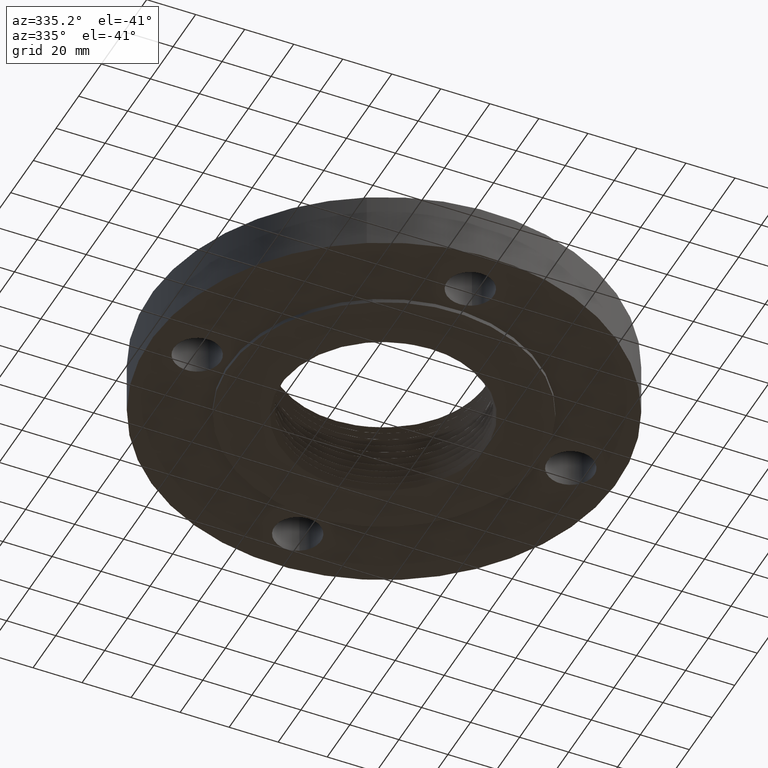
[diagram: clean part render]
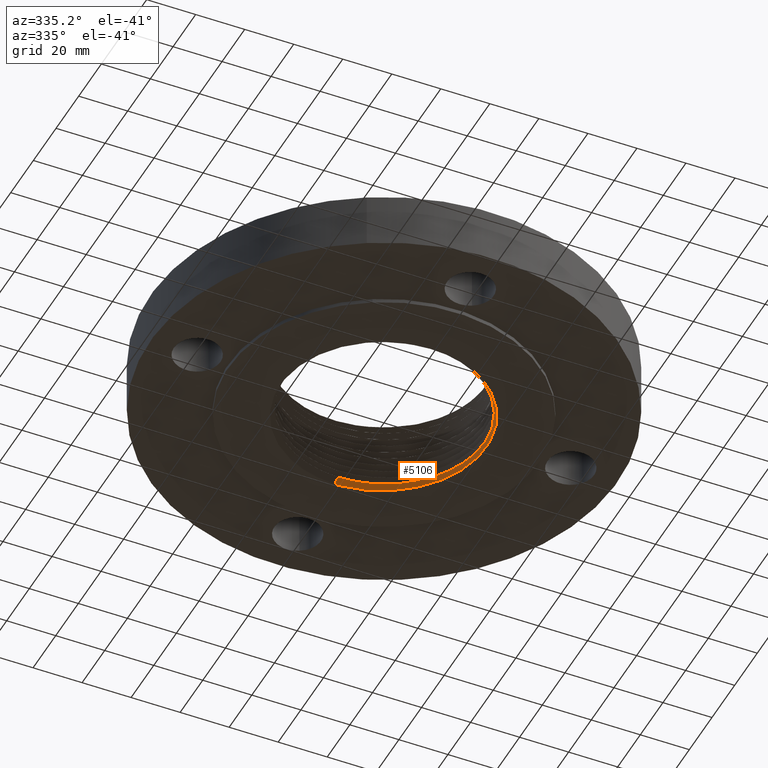
[diagram: same view with one face highlighted and labeled with its STEP entity id]
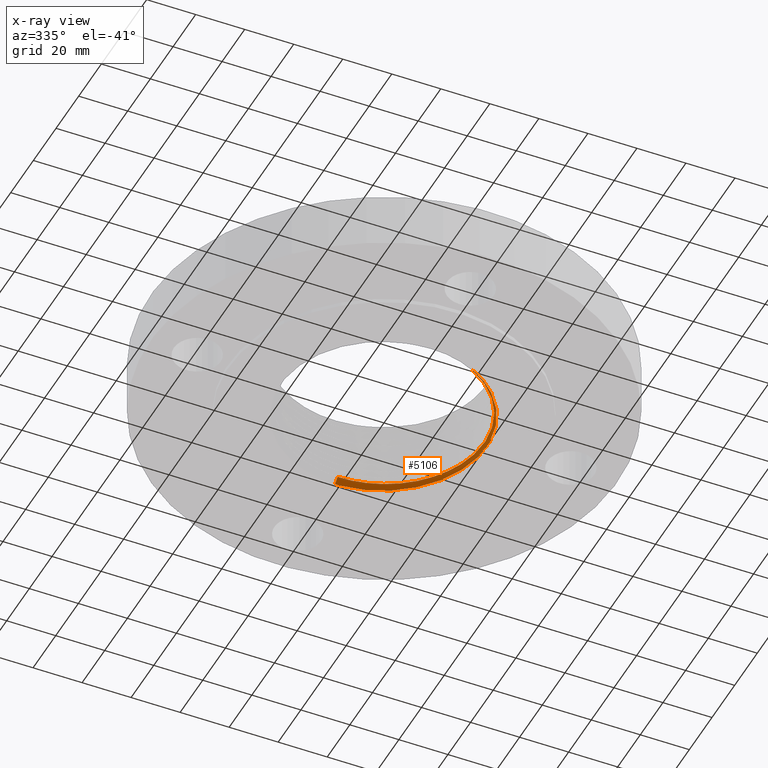
[diagram: x-ray of the same camera — body ghosted, the highlighted face saturated]
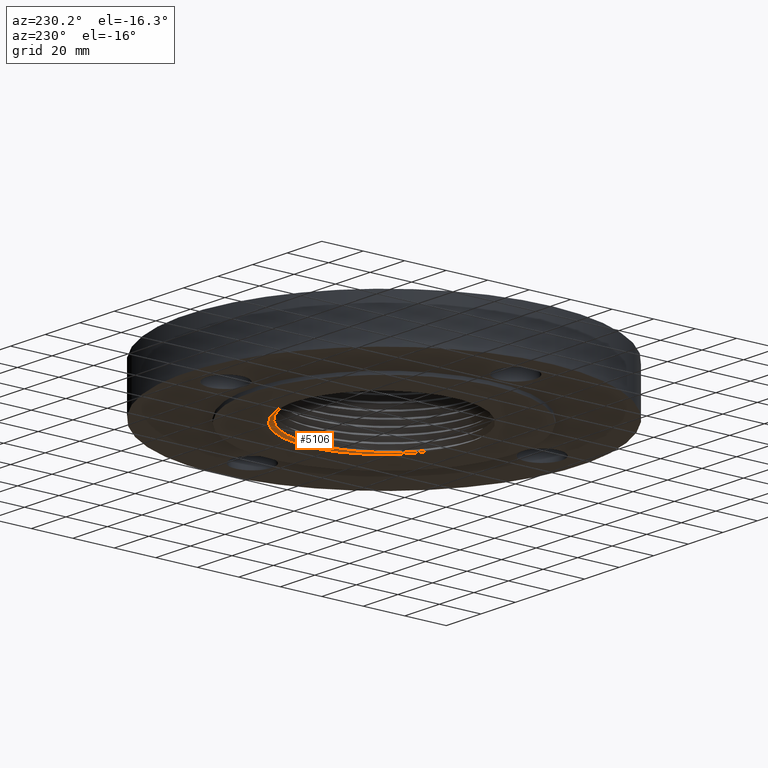
[diagram: same view with one face highlighted and labeled with its STEP entity id]
A machine part, auxiliary view. The second image highlights one B-rep face of the part: STEP entity #5106.
The next image is the same camera in x-ray: the body ghosted, the highlighted face saturated — about 0% of this face is hidden behind the body in this view.
A second angle (auxiliary view) of the same face is appended — the face is thin or edge-on in the first view.
In plain terms, the highlighted face is a freeform B-spline surface patch.
Its self-contained STEP definition (entity closure, byte-faithful):
#80=CARTESIAN_POINT('Vertex',(0.779727666988,-1.42731309088,-0.0625000000002)) ;
#84=CARTESIAN_POINT('Control Point',(0.0803885957613,1.7032381567,-0.0625000000003)) ;
#85=CARTESIAN_POINT('Control Point',(0.215600374124,1.69444358698,-0.0625000000003)) ;
#86=CARTESIAN_POINT('Control Point',(0.349811161119,1.67222714882,-0.0625000000003)) ;
#87=CARTESIAN_POINT('Control Point',(0.481211444396,1.63672790833,-0.0625000000003)) ;
#88=CARTESIAN_POINT('Control Point',(0.734996232187,1.54013031238,-0.0625000000003)) ;
#89=CARTESIAN_POINT('Control Point',(0.964201885189,1.39566433581,-0.0625000000003)) ;
#90=CARTESIAN_POINT('Control Point',(1.07112721349,1.3122409177,-0.0625000000003)) ;
#91=CARTESIAN_POINT('Control Point',(1.26671008398,1.12534408297,-0.0625000000003)) ;
#92=CARTESIAN_POINT('Control Point',(1.42114078721,0.903817690927,-0.0625000000003)) ;
#93=CARTESIAN_POINT('Control Point',(1.48693136268,0.785739012077,-0.0625000000003)) ;
#94=CARTESIAN_POINT('Control Point',(1.59380976479,0.538303399711,-0.0625000000003)) ;
#95=CARTESIAN_POINT('Control Point',(1.64928604649,0.274889194643,-0.0625000000003)) ;
#96=CARTESIAN_POINT('Control Point',(1.6636292106,0.140962999995,-0.0625000000003)) ;
#97=CARTESIAN_POINT('Control Point',(1.664676043,-0.0437822095799,-0.0625000000003)) ;
#98=CARTESIAN_POINT('Control Point',(1.64039500876,-0.22594661514,-0.0625000000003)) ;
#99=CARTESIAN_POINT('Control Point',(1.63190317246,-0.275317873615,-0.0625000000003)) ;
#100=CARTESIAN_POINT('Control Point',(1.59396788989,-0.454899241443,-0.0625000000003)) ;
#101=CARTESIAN_POINT('Control Point',(1.53141465201,-0.628058230536,-0.0625000000003)) ;
#102=CARTESIAN_POINT('Control Point',(1.4733608497,-0.748832554565,-0.0625000000003)) ;
#103=CARTESIAN_POINT('Control Point',(1.33377205932,-0.976748636683,-0.0625000000003)) ;
#104=CARTESIAN_POINT('Control Point',(1.15165507629,-1.17169169569,-0.0625000000003)) ;
#105=CARTESIAN_POINT('Control Point',(1.05107147082,-1.25948933282,-0.0625000000003)) ;
#106=CARTESIAN_POINT('Control Point',(0.933503050378,-1.34267183924,-0.0625000000003)) ;
#107=CARTESIAN_POINT('Control Point',(0.80831242576,-1.41207975131,-0.0625000000003)) ;
#108=CARTESIAN_POINT('Control Point',(0.798824790172,-1.41723741235,-0.0625000000003)) ;
#109=CARTESIAN_POINT('Control Point',(0.789296597434,-1.42231514833,-0.0625000000003)) ;
#110=CARTESIAN_POINT('Control Point',(0.779727666988,-1.42731309088,-0.0625000000003)) ;
#111=CARTESIAN_POINT('Vertex',(0.0803885957613,1.7032381567,-0.0625000000002)) ;
#4804=CARTESIAN_POINT('Vertex',(1.78145058611E-005,1.60843827521,0.00317851406243)) ;
#4808=CARTESIAN_POINT('Control Point',(0.770339045744,-1.41009616479,-0.049374072508)) ;
#4809=CARTESIAN_POINT('Control Point',(0.880698824853,-1.34986177459,-0.0478173888286)) ;
#4810=CARTESIAN_POINT('Control Point',(0.985169305199,-1.2788319718,-0.0462607327202)) ;
#4811=CARTESIAN_POINT('Control Point',(1.08433140626,-1.19653027357,-0.0446757339901)) ;
#4812=CARTESIAN_POINT('Control Point',(1.26588944816,-1.01093481439,-0.041477490097)) ;
#4813=CARTESIAN_POINT('Control Point',(1.40690068697,-0.792927137147,-0.0382795124876)) ;
#4814=CARTESIAN_POINT('Control Point',(1.46532231069,-0.678058421532,-0.036694780041)) ;
#4815=CARTESIAN_POINT('Control Point',(1.57415112368,-0.40148374484,-0.0330335004696)) ;
#4816=CARTESIAN_POINT('Control Point',(1.61753482187,-0.106236193541,-0.0293718216525)) ;
#4817=CARTESIAN_POINT('Control Point',(1.6197304579,0.0658369803995,-0.0272601978557)) ;
#4818=CARTESIAN_POINT('Control Point',(1.58895292536,0.320750464934,-0.0241027870675)) ;
#4819=CARTESIAN_POINT('Control Point',(1.50944587321,0.563002760072,-0.0209572270774)) ;
#4820=CARTESIAN_POINT('Control Point',(1.47766895988,0.6419712915,-0.0199088997105)) ;
#4821=CARTESIAN_POINT('Control Point',(1.40365141004,0.795509182757,-0.0178089783585)) ;
#4822=CARTESIAN_POINT('Control Point',(1.31007886456,0.937946705918,-0.015708638399)) ;
#4823=CARTESIAN_POINT('Control Point',(1.25872399111,1.00580186633,-0.0146598924246)) ;
#4824=CARTESIAN_POINT('Control Point',(1.14791369372,1.13387231388,-0.0125688440939)) ;
#4825=CARTESIAN_POINT('Control Point',(1.02128816962,1.246359269,-0.0104744748758)) ;
#4826=CARTESIAN_POINT('Control Point',(0.954112615893,1.29859663636,-0.00942259141649)) ;
#4827=CARTESIAN_POINT('Control Point',(0.812895336845,1.39403585388,-0.00731476436385)) ;
#4828=CARTESIAN_POINT('Control Point',(0.660288811947,1.47008046609,-0.00520893504869)) ;
#4829=CARTESIAN_POINT('Control Point',(0.581710540363,1.50290023443,-0.00415904932687)) ;
#4830=CARTESIAN_POINT('Control Point',(0.4210312567,1.55797062647,-0.00206576592363)) ;
#4831=CARTESIAN_POINT('Control Point',(0.254438141585,1.59150085983,2.72594110262E-005)) ;
#4832=CARTESIAN_POINT('Control Point',(0.169972539143,1.60275855023,0.00107633210833)) ;
#4833=CARTESIAN_POINT('Control Point',(0.0849968543007,1.60840448783,0.00212742990285)) ;
#4834=CARTESIAN_POINT('Control Point',(1.78145058567E-005,1.60843827521,0.00317851406243)) ;
#4835=CARTESIAN_POINT('Vertex',(0.770322761446,-1.41010505264,-0.049374302206)) ;
#5063=CARTESIAN_POINT('Control Point',(7.54816032813E-007,1.70516333549,-0.0615617369894)) ;
#5064=CARTESIAN_POINT('Control Point',(1.80392028701E-005,1.60716428769,0.00403122247083)) ;
#5065=CARTESIAN_POINT('Control Point',(0.601520992467,1.7049437575,-0.0685797537514)) ;
#5066=CARTESIAN_POINT('Control Point',(0.566967840401,1.60693861237,-0.00298679432531)) ;
#5067=CARTESIAN_POINT('Control Point',(1.20294740622,1.43948072895,-0.0755989440377)) ;
#5068=CARTESIAN_POINT('Control Point',(1.13381539876,1.35671348077,-0.0100059896395)) ;
#5069=CARTESIAN_POINT('Control Point',(1.64039017954,0.909763278631,-0.0825470018036)) ;
#5070=CARTESIAN_POINT('Control Point',(1.54608956346,0.85743305857,-0.0169540430502)) ;
#5071=CARTESIAN_POINT('Control Point',(1.86048777524,-0.0509433205297,-0.0930725003107)) ;
#5072=CARTESIAN_POINT('Control Point',(1.75349792458,-0.048039699978,-0.0274795406642)) ;
#5073=CARTESIAN_POINT('Control Point',(1.49491662921,-0.898814519158,-0.103600613423)) ;
#5074=CARTESIAN_POINT('Control Point',(1.40892438717,-0.847135350864,-0.0380076542858)) ;
#5075=CARTESIAN_POINT('Control Point',(1.31202024896,-1.14929423697,-0.107103340707)) ;
#5076=CARTESIAN_POINT('Control Point',(1.23653956941,-1.08320196972,-0.0415103845371)) ;
#5077=CARTESIAN_POINT('Control Point',(1.08020587659,-1.35115774185,-0.110608807438)) ;
#5078=CARTESIAN_POINT('Control Point',(1.01805322885,-1.27344618875,-0.045015848174)) ;
#5079=CARTESIAN_POINT('Control Point',(0.816710843326,-1.49498074684,-0.114114553055)) ;
#5080=CARTESIAN_POINT('Control Point',(0.76971177359,-1.40898713579,-0.0485215938059)) ;
#5082=CARTESIAN_POINT('Control Point',(0.779727666988,-1.42731309088,-0.0625000000002)) ;
#5083=CARTESIAN_POINT('Control Point',(0.770322761446,-1.41010505264,-0.049374302206)) ;
#5086=CARTESIAN_POINT('Control Point',(7.54816032558E-007,1.70516333549,-0.0615617369894)) ;
#5087=CARTESIAN_POINT('Control Point',(1.7814505858E-005,1.60843827521,0.00317851406243)) ;
#5088=CARTESIAN_POINT('Vertex',(7.54816034908E-007,1.70516333549,-0.0615617369894)) ;
#5092=CARTESIAN_POINT('Control Point',(7.54816032813E-007,1.70516333549,-0.0615617369894)) ;
#5093=CARTESIAN_POINT('Control Point',(0.016084704069,1.70515746423,-0.0617493905684)) ;
#5094=CARTESIAN_POINT('Control Point',(0.0321685862411,1.70496195314,-0.0619370449865)) ;
#5095=CARTESIAN_POINT('Control Point',(0.0482492681958,1.70457682112,-0.0621246988613)) ;
#5096=CARTESIAN_POINT('Control Point',(0.0643236358412,1.70400216482,-0.0623123509214)) ;
#5097=CARTESIAN_POINT('Control Point',(0.0803885957613,1.7032381567,-0.0625000000002)) ;
#5100=ORIENTED_EDGE('',*,*,#5084,.F.) ;
#5101=ORIENTED_EDGE('',*,*,#4837,.T.) ;
#5102=ORIENTED_EDGE('',*,*,#5090,.T.) ;
#5103=ORIENTED_EDGE('',*,*,#5098,.T.) ;
#5104=ORIENTED_EDGE('',*,*,#113,.T.) ;
#5106=ADVANCED_FACE('PartBody',(#5105),#5062,.T.) ;
#83=B_SPLINE_CURVE_WITH_KNOTS('',5,(#84,#85,#86,#87,#88,#89,#90,#91,#92,#93,#94,#95,#96,#97,#98,#99,#100,#101,#102,#103,#104,#105,#106,#107,#108,#109,#110),.UNSPECIFIED.,.F.,.U.,(6,3,3,3,3,3,3,3,6),(0.,23.9896573285,48.0005208965,72.0170420709,96.0083070564,104.999148748,128.969369577,152.939223334,154.894984815),.UNSPECIFIED.) ;
#4807=B_SPLINE_CURVE_WITH_KNOTS('',5,(#4808,#4809,#4810,#4811,#4812,#4813,#4814,#4815,#4816,#4817,#4818,#4819,#4820,#4821,#4822,#4823,#4824,#4825,#4826,#4827,#4828,#4829,#4830,#4831,#4832,#4833,#4834),.UNSPECIFIED.,.F.,.U.,(6,3,3,3,3,3,3,3,6),(0.,23.3628923712,46.7257847423,78.3247927749,94.0511769957,109.777561216,125.499296192,141.221031167,157.003578507),.UNSPECIFIED.) ;
#5081=B_SPLINE_CURVE_WITH_KNOTS('',1,(#5082,#5083),.UNSPECIFIED.,.F.,.U.,(2,2),(0.859323457423,1.4587057508),.UNSPECIFIED.) ;
#5085=B_SPLINE_CURVE_WITH_KNOTS('',1,(#5086,#5087),.UNSPECIFIED.,.F.,.U.,(2,2),(-1.49764450472,1.45870575055),.UNSPECIFIED.) ;
#5091=B_SPLINE_CURVE_WITH_KNOTS('',5,(#5092,#5093,#5094,#5095,#5096,#5097),.UNSPECIFIED.,.F.,.U.,(6,6),(0.,1.98384198933),.UNSPECIFIED.) ;
#5062=B_SPLINE_SURFACE_WITH_KNOTS('',5,1,((#5063,#5064),(#5065,#5066),(#5067,#5068),(#5069,#5070),(#5071,#5072),(#5073,#5074),(#5075,#5076),(#5077,#5078),(#5079,#5080)),.UNSPECIFIED.,.F.,.F.,.U.,(6,3,6),(2,2),(0.,74.193289603,111.218707077),(-1.49764450472,1.49764450472),.UNSPECIFIED.) ;
#113=EDGE_CURVE('',#112,#81,#83,.T.) ;
#4837=EDGE_CURVE('',#4836,#4805,#4807,.T.) ;
#5084=EDGE_CURVE('',#4836,#81,#5081,.F.) ;
#5090=EDGE_CURVE('',#4805,#5089,#5085,.F.) ;
#5098=EDGE_CURVE('',#5089,#112,#5091,.T.) ;
#5099=EDGE_LOOP('',(#5100,#5101,#5102,#5103,#5104)) ;
#5105=FACE_OUTER_BOUND('',#5099,.T.) ;
#81=VERTEX_POINT('',#80) ;
#112=VERTEX_POINT('',#111) ;
#4805=VERTEX_POINT('',#4804) ;
#4836=VERTEX_POINT('',#4835) ;
#5089=VERTEX_POINT('',#5088) ;